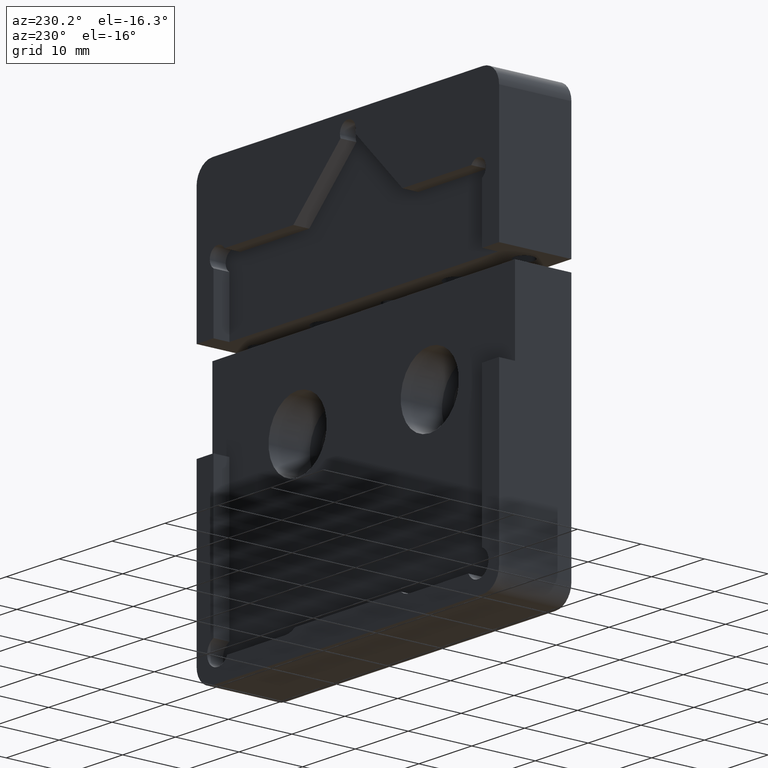
[diagram: clean part render]
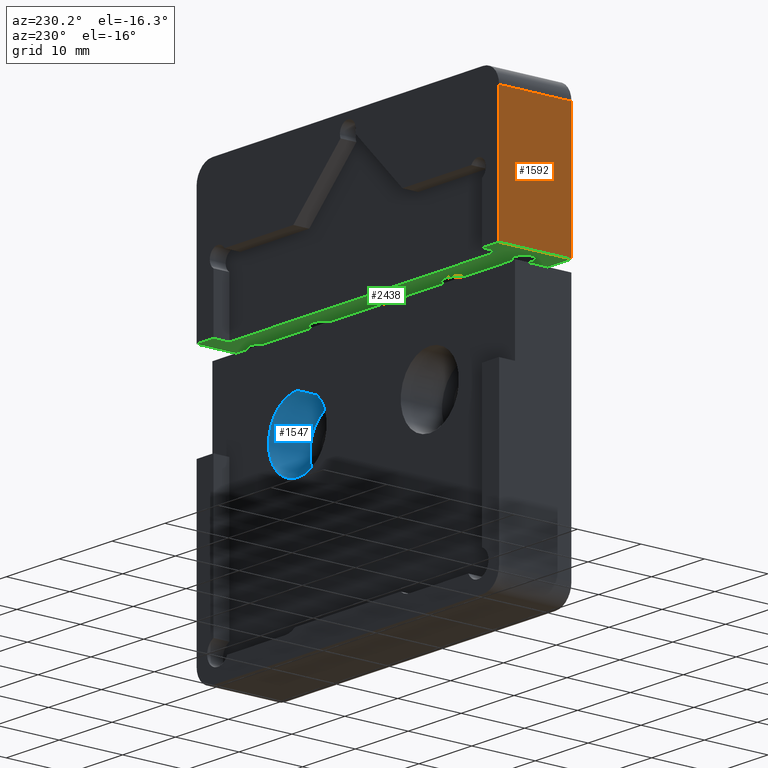
[diagram: same view with three faces highlighted in distinct colors, each labeled with its STEP entity id]
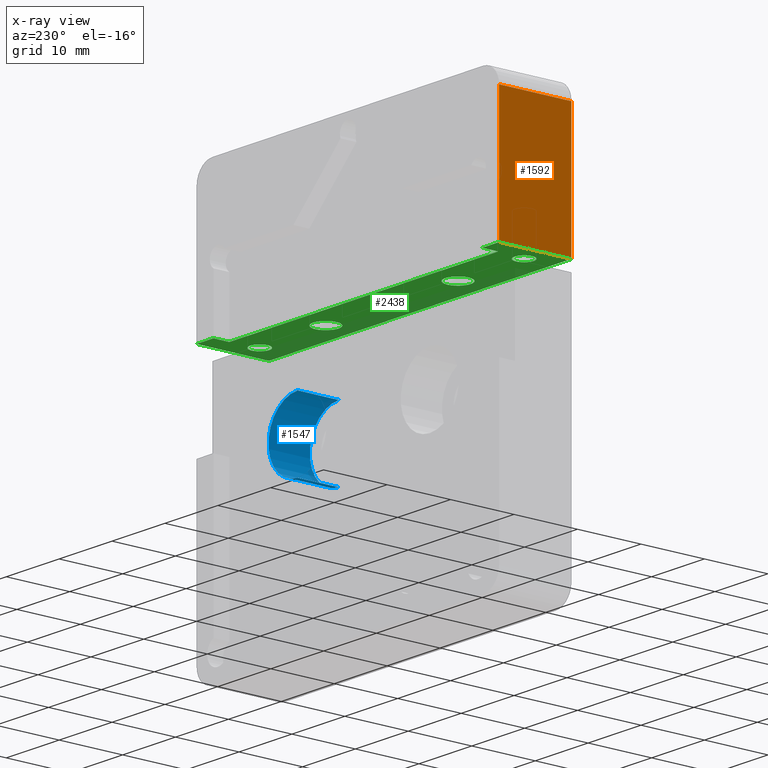
[diagram: x-ray of the same camera — body ghosted, the three highlighted faces saturated]
A machine part, auxiliary view with three faces highlighted in distinct colors.
The next image is the same camera in x-ray (body ghosted, the three faces saturated) — at least one of them is partly hidden behind the body in this view.
Their STEP definitions:

[orange] entity #1592 — the highlighted planar face has unit normal (1, -0, -0).
#113 = FACE_OUTER_BOUND ( 'NONE', #772, .T. ) ;
#249 = VERTEX_POINT ( 'NONE', #2196 ) ;
#307 = AXIS2_PLACEMENT_3D ( 'NONE', #679, #2101, #951 ) ;
#347 = VERTEX_POINT ( 'NONE', #1905 ) ;
#409 = PLANE ( 'NONE',  #307 ) ;
#509 = ORIENTED_EDGE ( 'NONE', *, *, #1775, .T. ) ;
#640 = VERTEX_POINT ( 'NONE', #3427 ) ;
#679 = CARTESIAN_POINT ( 'NONE',  ( 28.60000000000000853, 11.40000000000000036, -11.45000000000000107 ) ) ;
#772 = EDGE_LOOP ( 'NONE', ( #509, #2235, #3213, #1346 ) ) ;
#776 = CARTESIAN_POINT ( 'NONE',  ( 28.60000000000000853, 11.40000000000000036, -11.45000000000000107 ) ) ;
#818 = EDGE_CURVE ( 'NONE', #347, #249, #3266, .T. ) ;
#867 = CARTESIAN_POINT ( 'NONE',  ( 28.60000000000000853, 0.000000000000000000, -8.450000000000002842 ) ) ;
#951 = DIRECTION ( 'NONE',  ( 1.515042337097648137E-16, 0.000000000000000000, 1.000000000000000000 ) ) ;
#1004 = CARTESIAN_POINT ( 'NONE',  ( 28.60000000000001208, 11.40000000000000036, 11.44999999999999751 ) ) ;
#1285 = DIRECTION ( 'NONE',  ( -0.000000000000000000, -1.000000000000000000, -0.000000000000000000 ) ) ;
#1296 = CARTESIAN_POINT ( 'NONE',  ( 28.60000000000000853, 0.000000000000000000, -11.45000000000000107 ) ) ;
#1346 = ORIENTED_EDGE ( 'NONE', *, *, #2035, .T. ) ;
#1592 = ADVANCED_FACE ( 'NONE', ( #113 ), #409, .F. ) ;
#1648 = DIRECTION ( 'NONE',  ( -1.515042337097648137E-16, -0.000000000000000000, -1.000000000000000000 ) ) ;
#1775 = EDGE_CURVE ( 'NONE', #640, #2380, #2117, .T. ) ;
#1903 = DIRECTION ( 'NONE',  ( -0.000000000000000000, 1.000000000000000000, -0.000000000000000000 ) ) ;
#1905 = CARTESIAN_POINT ( 'NONE',  ( 28.60000000000001208, 11.40000000000000036, 11.44999999999999751 ) ) ;
#2035 = EDGE_CURVE ( 'NONE', #347, #640, #2085, .T. ) ;
#2085 = LINE ( 'NONE', #1004, #3292 ) ;
#2101 = DIRECTION ( 'NONE',  ( -1.000000000000000000, 0.000000000000000000, 1.515042337097648137E-16 ) ) ;
#2117 = LINE ( 'NONE', #1296, #2215 ) ;
#2167 = LINE ( 'NONE', #2493, #3540 ) ;
#2196 = CARTESIAN_POINT ( 'NONE',  ( 28.60000000000000853, 11.40000000000000036, -8.450000000000002842 ) ) ;
#2215 = VECTOR ( 'NONE', #2406, 1000.000000000000000 ) ;
#2235 = ORIENTED_EDGE ( 'NONE', *, *, #2746, .T. ) ;
#2380 = VERTEX_POINT ( 'NONE', #867 ) ;
#2406 = DIRECTION ( 'NONE',  ( -1.515042337097648137E-16, -0.000000000000000000, -1.000000000000000000 ) ) ;
#2493 = CARTESIAN_POINT ( 'NONE',  ( 28.60000000000000853, 11.40000000000000036, -8.450000000000002842 ) ) ;
#2746 = EDGE_CURVE ( 'NONE', #2380, #249, #2167, .T. ) ;
#3213 = ORIENTED_EDGE ( 'NONE', *, *, #818, .F. ) ;
#3266 = LINE ( 'NONE', #776, #3461 ) ;
#3292 = VECTOR ( 'NONE', #1285, 1000.000000000000000 ) ;
#3427 = CARTESIAN_POINT ( 'NONE',  ( 28.60000000000001208, 0.000000000000000000, 11.44999999999999751 ) ) ;
#3461 = VECTOR ( 'NONE', #1648, 1000.000000000000000 ) ;
#3540 = VECTOR ( 'NONE', #1903, 1000.000000000000000 ) ;

[blue] entity #1547 — the highlighted cylindrical surface (partial cylindrical patch) has radius 5.5 mm, axis along (0, 1, 0).
#54 = EDGE_CURVE ( 'NONE', #2722, #1504, #3351, .T. ) ;
#115 = DIRECTION ( 'NONE',  ( -0.000000000000000000, 1.000000000000000000, -0.000000000000000000 ) ) ;
#242 = CARTESIAN_POINT ( 'NONE',  ( 12.50000000000000000, 2.400000000000001243, 13.70000000000000284 ) ) ;
#248 = VECTOR ( 'NONE', #2034, 1000.000000000000000 ) ;
#398 = DIRECTION ( 'NONE',  ( -0.000000000000000000, 1.000000000000000000, -0.000000000000000000 ) ) ;
#624 = ORIENTED_EDGE ( 'NONE', *, *, #930, .T. ) ;
#677 = EDGE_LOOP ( 'NONE', ( #3154, #2917, #1611, #624 ) ) ;
#712 = CARTESIAN_POINT ( 'NONE',  ( 12.50000000000000000, 8.900000000000000355, 2.700000000000013056 ) ) ;
#863 = CARTESIAN_POINT ( 'NONE',  ( 12.50000000000000000, 2.400000000000001243, 2.700000000000013056 ) ) ;
#889 = DIRECTION ( 'NONE',  ( -0.000000000000000000, 1.000000000000000000, -0.000000000000000000 ) ) ;
#930 = EDGE_CURVE ( 'NONE', #1504, #3437, #3179, .T. ) ;
#985 = LINE ( 'NONE', #712, #1008 ) ;
#1008 = VECTOR ( 'NONE', #115, 1000.000000000000000 ) ;
#1046 = AXIS2_PLACEMENT_3D ( 'NONE', #3124, #3451, #1247 ) ;
#1083 = EDGE_CURVE ( 'NONE', #2722, #2484, #1577, .T. ) ;
#1247 = DIRECTION ( 'NONE',  ( 0.000000000000000000, 0.000000000000000000, 1.000000000000000000 ) ) ;
#1400 = DIRECTION ( 'NONE',  ( 0.000000000000000000, 0.000000000000000000, 1.000000000000000000 ) ) ;
#1504 = VERTEX_POINT ( 'NONE', #1789 ) ;
#1510 = CARTESIAN_POINT ( 'NONE',  ( 12.50000000000000000, 2.400000000000001243, 8.200000000000008171 ) ) ;
#1547 = ADVANCED_FACE ( 'NONE', ( #3141 ), #3438, .F. ) ;
#1577 = CIRCLE ( 'NONE', #3073, 5.499999999999994671 ) ;
#1611 = ORIENTED_EDGE ( 'NONE', *, *, #54, .T. ) ;
#1756 = CARTESIAN_POINT ( 'NONE',  ( 12.50000000000000000, 8.900000000000000355, 13.70000000000000284 ) ) ;
#1789 = CARTESIAN_POINT ( 'NONE',  ( 12.50000000000000000, 8.900000000000000355, 13.70000000000000284 ) ) ;
#2034 = DIRECTION ( 'NONE',  ( -0.000000000000000000, 1.000000000000000000, -0.000000000000000000 ) ) ;
#2385 = AXIS2_PLACEMENT_3D ( 'NONE', #2512, #889, #1400 ) ;
#2484 = VERTEX_POINT ( 'NONE', #863 ) ;
#2512 = CARTESIAN_POINT ( 'NONE',  ( 12.50000000000000000, 8.900000000000000355, 8.200000000000008171 ) ) ;
#2722 = VERTEX_POINT ( 'NONE', #242 ) ;
#2910 = DIRECTION ( 'NONE',  ( 0.000000000000000000, 0.000000000000000000, 1.000000000000000000 ) ) ;
#2917 = ORIENTED_EDGE ( 'NONE', *, *, #1083, .F. ) ;
#3073 = AXIS2_PLACEMENT_3D ( 'NONE', #1510, #398, #2910 ) ;
#3124 = CARTESIAN_POINT ( 'NONE',  ( 12.50000000000000000, 8.900000000000000355, 8.200000000000008171 ) ) ;
#3128 = CARTESIAN_POINT ( 'NONE',  ( 12.50000000000000000, 8.900000000000000355, 2.700000000000013056 ) ) ;
#3141 = FACE_OUTER_BOUND ( 'NONE', #677, .T. ) ;
#3154 = ORIENTED_EDGE ( 'NONE', *, *, #3401, .F. ) ;
#3179 = CIRCLE ( 'NONE', #2385, 5.499999999999994671 ) ;
#3351 = LINE ( 'NONE', #1756, #248 ) ;
#3401 = EDGE_CURVE ( 'NONE', #2484, #3437, #985, .T. ) ;
#3437 = VERTEX_POINT ( 'NONE', #3128 ) ;
#3438 = CYLINDRICAL_SURFACE ( 'NONE', #1046, 5.499999999999994671 ) ;
#3451 = DIRECTION ( 'NONE',  ( -0.000000000000000000, 1.000000000000000000, -0.000000000000000000 ) ) ;

[green] entity #2438 — the highlighted planar face has unit normal (0, 0, 1).
#19 = DIRECTION ( 'NONE',  ( -1.000000000000000000, 0.000000000000000000, -0.000000000000000000 ) ) ;
#79 = VERTEX_POINT ( 'NONE', #2645 ) ;
#94 = EDGE_CURVE ( 'NONE', #2348, #3272, #450, .T. ) ;
#102 = EDGE_LOOP ( 'NONE', ( #780, #1153, #2957, #263, #2471, #935, #741, #122 ) ) ;
#122 = ORIENTED_EDGE ( 'NONE', *, *, #2035, .F. ) ;
#134 = VECTOR ( 'NONE', #1945, 1000.000000000000000 ) ;
#185 = DIRECTION ( 'NONE',  ( -1.000000000000000000, 0.000000000000000000, 0.000000000000000000 ) ) ;
#202 = EDGE_CURVE ( 'NONE', #1585, #3272, #231, .T. ) ;
#215 = DIRECTION ( 'NONE',  ( 0.000000000000000000, 1.000000000000000000, 0.000000000000000000 ) ) ;
#231 = LINE ( 'NONE', #3310, #134 ) ;
#263 = ORIENTED_EDGE ( 'NONE', *, *, #94, .T. ) ;
#269 = AXIS2_PLACEMENT_3D ( 'NONE', #1481, #2585, #3323 ) ;
#288 = PLANE ( 'NONE',  #1677 ) ;
#347 = VERTEX_POINT ( 'NONE', #1905 ) ;
#354 = DIRECTION ( 'NONE',  ( 1.000000000000000000, 0.000000000000000000, 0.000000000000000000 ) ) ;
#358 = ORIENTED_EDGE ( 'NONE', *, *, #1738, .F. ) ;
#379 = EDGE_LOOP ( 'NONE', ( #2230, #605 ) ) ;
#401 = DIRECTION ( 'NONE',  ( -1.000000000000000000, 0.000000000000000000, 0.000000000000000000 ) ) ;
#422 = CARTESIAN_POINT ( 'NONE',  ( 12.50000000000000000, 4.450000000000005507, 11.44999999999999751 ) ) ;
#450 = LINE ( 'NONE', #1595, #701 ) ;
#460 = DIRECTION ( 'NONE',  ( 1.000000000000000000, 0.000000000000000000, 0.000000000000000000 ) ) ;
#461 = EDGE_CURVE ( 'NONE', #1585, #1114, #3360, .T. ) ;
#492 = AXIS2_PLACEMENT_3D ( 'NONE', #1550, #2360, #401 ) ;
#558 = FACE_OUTER_BOUND ( 'NONE', #102, .T. ) ;
#563 = CARTESIAN_POINT ( 'NONE',  ( -26.50000000000000355, 4.450000000000000178, 11.44999999999999751 ) ) ;
#570 = EDGE_CURVE ( 'NONE', #2559, #3444, #2574, .T. ) ;
#576 = CARTESIAN_POINT ( 'NONE',  ( -28.59999999999999076, 11.40000000000000036, 11.44999999999999751 ) ) ;
#577 = ORIENTED_EDGE ( 'NONE', *, *, #664, .F. ) ;
#603 = LINE ( 'NONE', #3354, #1844 ) ;
#605 = ORIENTED_EDGE ( 'NONE', *, *, #3421, .T. ) ;
#619 = AXIS2_PLACEMENT_3D ( 'NONE', #2522, #1157, #2251 ) ;
#630 = DIRECTION ( 'NONE',  ( 1.000000000000000000, 0.000000000000000000, 0.000000000000000000 ) ) ;
#640 = VERTEX_POINT ( 'NONE', #3427 ) ;
#657 = CARTESIAN_POINT ( 'NONE',  ( 12.50000000000000000, 4.450000000000005507, 11.44999999999999751 ) ) ;
#664 = EDGE_CURVE ( 'NONE', #3444, #2559, #2092, .T. ) ;
#675 = EDGE_CURVE ( 'NONE', #824, #2348, #1586, .T. ) ;
#701 = VECTOR ( 'NONE', #215, 1000.000000000000000 ) ;
#725 = CARTESIAN_POINT ( 'NONE',  ( -25.00000000000000000, 4.450000000000000178, 11.44999999999999751 ) ) ;
#741 = ORIENTED_EDGE ( 'NONE', *, *, #2500, .T. ) ;
#780 = ORIENTED_EDGE ( 'NONE', *, *, #1359, .F. ) ;
#810 = CARTESIAN_POINT ( 'NONE',  ( -23.50000000000000000, 4.450000000000000178, 11.44999999999999751 ) ) ;
#824 = VERTEX_POINT ( 'NONE', #2475 ) ;
#855 = CARTESIAN_POINT ( 'NONE',  ( -25.39999999999999503, 11.40000000000000036, 11.44999999999999751 ) ) ;
#875 = CARTESIAN_POINT ( 'NONE',  ( -28.59999999999999076, 11.40000000000000036, 11.44999999999999751 ) ) ;
#924 = CARTESIAN_POINT ( 'NONE',  ( 0.000000000000000000, 4.450000000000003730, 11.44999999999999751 ) ) ;
#934 = CIRCLE ( 'NONE', #2954, 1.500000000000001332 ) ;
#935 = ORIENTED_EDGE ( 'NONE', *, *, #461, .T. ) ;
#961 = EDGE_LOOP ( 'NONE', ( #1464, #358 ) ) ;
#982 = AXIS2_PLACEMENT_3D ( 'NONE', #422, #2059, #3150 ) ;
#999 = ORIENTED_EDGE ( 'NONE', *, *, #2378, .F. ) ;
#1004 = CARTESIAN_POINT ( 'NONE',  ( 28.60000000000001208, 11.40000000000000036, 11.44999999999999751 ) ) ;
#1017 = DIRECTION ( 'NONE',  ( 0.000000000000000000, 0.000000000000000000, 1.000000000000000000 ) ) ;
#1036 = VECTOR ( 'NONE', #3136, 1000.000000000000000 ) ;
#1114 = VERTEX_POINT ( 'NONE', #2391 ) ;
#1147 = VERTEX_POINT ( 'NONE', #3189 ) ;
#1153 = ORIENTED_EDGE ( 'NONE', *, *, #3331, .T. ) ;
#1157 = DIRECTION ( 'NONE',  ( 0.000000000000000000, 0.000000000000000000, 1.000000000000000000 ) ) ;
#1166 = ORIENTED_EDGE ( 'NONE', *, *, #1809, .F. ) ;
#1199 = LINE ( 'NONE', #1753, #1583 ) ;
#1253 = CARTESIAN_POINT ( 'NONE',  ( -14.50000000000000000, 4.450000000000001954, 11.44999999999999751 ) ) ;
#1256 = AXIS2_PLACEMENT_3D ( 'NONE', #2869, #1429, #2046 ) ;
#1268 = EDGE_CURVE ( 'NONE', #1816, #1147, #2621, .T. ) ;
#1285 = DIRECTION ( 'NONE',  ( -0.000000000000000000, -1.000000000000000000, -0.000000000000000000 ) ) ;
#1359 = EDGE_CURVE ( 'NONE', #2626, #347, #1199, .T. ) ;
#1372 = CIRCLE ( 'NONE', #619, 1.500000000000001332 ) ;
#1429 = DIRECTION ( 'NONE',  ( 0.000000000000000000, 0.000000000000000000, 1.000000000000000000 ) ) ;
#1434 = VERTEX_POINT ( 'NONE', #563 ) ;
#1464 = ORIENTED_EDGE ( 'NONE', *, *, #2553, .F. ) ;
#1465 = VECTOR ( 'NONE', #185, 1000.000000000000000 ) ;
#1481 = CARTESIAN_POINT ( 'NONE',  ( 25.00000000000000000, 4.450000000000006395, 11.44999999999999751 ) ) ;
#1487 = EDGE_LOOP ( 'NONE', ( #1166, #999 ) ) ;
#1550 = CARTESIAN_POINT ( 'NONE',  ( 25.00000000000000000, 4.450000000000006395, 11.44999999999999751 ) ) ;
#1567 = CARTESIAN_POINT ( 'NONE',  ( -28.59999999999999076, 8.900000000000000355, 11.44999999999999751 ) ) ;
#1583 = VECTOR ( 'NONE', #630, 1000.000000000000000 ) ;
#1585 = VERTEX_POINT ( 'NONE', #1774 ) ;
#1586 = LINE ( 'NONE', #1567, #1465 ) ;
#1595 = CARTESIAN_POINT ( 'NONE',  ( -25.39999999999999503, 11.40000000000000036, 11.44999999999999751 ) ) ;
#1598 = DIRECTION ( 'NONE',  ( -1.000000000000000000, 0.000000000000000000, 0.000000000000000000 ) ) ;
#1632 = CARTESIAN_POINT ( 'NONE',  ( -1.449999999999996847, 4.450000000000003730, 11.44999999999999751 ) ) ;
#1633 = FACE_BOUND ( 'NONE', #961, .T. ) ;
#1654 = EDGE_LOOP ( 'NONE', ( #577, #1724 ) ) ;
#1677 = AXIS2_PLACEMENT_3D ( 'NONE', #576, #2498, #19 ) ;
#1724 = ORIENTED_EDGE ( 'NONE', *, *, #570, .F. ) ;
#1738 = EDGE_CURVE ( 'NONE', #2050, #3466, #3457, .T. ) ;
#1753 = CARTESIAN_POINT ( 'NONE',  ( -28.59999999999999076, 11.40000000000000036, 11.44999999999999751 ) ) ;
#1768 = CARTESIAN_POINT ( 'NONE',  ( 10.50000000000000000, 4.450000000000005507, 11.44999999999999751 ) ) ;
#1774 = CARTESIAN_POINT ( 'NONE',  ( -28.59999999999999076, 11.40000000000000036, 11.44999999999999751 ) ) ;
#1777 = CARTESIAN_POINT ( 'NONE',  ( 14.50000000000000000, 4.450000000000005507, 11.44999999999999751 ) ) ;
#1782 = DIRECTION ( 'NONE',  ( 0.000000000000000000, 0.000000000000000000, 1.000000000000000000 ) ) ;
#1792 = CARTESIAN_POINT ( 'NONE',  ( -10.50000000000000000, 4.450000000000001954, 11.44999999999999751 ) ) ;
#1809 = EDGE_CURVE ( 'NONE', #2253, #1434, #934, .T. ) ;
#1816 = VERTEX_POINT ( 'NONE', #1632 ) ;
#1832 = CARTESIAN_POINT ( 'NONE',  ( 25.39999999999999858, 11.40000000000000036, 11.44999999999999751 ) ) ;
#1844 = VECTOR ( 'NONE', #2510, 1000.000000000000000 ) ;
#1905 = CARTESIAN_POINT ( 'NONE',  ( 28.60000000000001208, 11.40000000000000036, 11.44999999999999751 ) ) ;
#1929 = AXIS2_PLACEMENT_3D ( 'NONE', #2940, #1017, #3273 ) ;
#1943 = FACE_BOUND ( 'NONE', #379, .T. ) ;
#1945 = DIRECTION ( 'NONE',  ( 1.000000000000000000, 0.000000000000000000, 0.000000000000000000 ) ) ;
#1959 = CIRCLE ( 'NONE', #1256, 2.000000000000000000 ) ;
#2035 = EDGE_CURVE ( 'NONE', #347, #640, #2085, .T. ) ;
#2036 = DIRECTION ( 'NONE',  ( -1.000000000000000000, 0.000000000000000000, 0.000000000000000000 ) ) ;
#2046 = DIRECTION ( 'NONE',  ( 1.000000000000000000, 0.000000000000000000, 0.000000000000000000 ) ) ;
#2050 = VERTEX_POINT ( 'NONE', #1253 ) ;
#2059 = DIRECTION ( 'NONE',  ( 0.000000000000000000, 0.000000000000000000, 1.000000000000000000 ) ) ;
#2085 = LINE ( 'NONE', #1004, #3292 ) ;
#2092 = CIRCLE ( 'NONE', #982, 2.000000000000000000 ) ;
#2156 = CARTESIAN_POINT ( 'NONE',  ( 0.000000000000000000, 4.450000000000003730, 11.44999999999999751 ) ) ;
#2229 = FACE_BOUND ( 'NONE', #1654, .T. ) ;
#2230 = ORIENTED_EDGE ( 'NONE', *, *, #1268, .T. ) ;
#2251 = DIRECTION ( 'NONE',  ( 1.000000000000000000, 0.000000000000000000, 0.000000000000000000 ) ) ;
#2253 = VERTEX_POINT ( 'NONE', #810 ) ;
#2256 = ORIENTED_EDGE ( 'NONE', *, *, #2996, .F. ) ;
#2280 = CARTESIAN_POINT ( 'NONE',  ( -28.59999999999999076, 0.000000000000000000, 11.44999999999999751 ) ) ;
#2298 = CIRCLE ( 'NONE', #3483, 1.449999999999996847 ) ;
#2348 = VERTEX_POINT ( 'NONE', #3332 ) ;
#2350 = CIRCLE ( 'NONE', #492, 1.500000000000001332 ) ;
#2360 = DIRECTION ( 'NONE',  ( 0.000000000000000000, 0.000000000000000000, 1.000000000000000000 ) ) ;
#2378 = EDGE_CURVE ( 'NONE', #1434, #2253, #1372, .T. ) ;
#2391 = CARTESIAN_POINT ( 'NONE',  ( -28.59999999999999076, 0.000000000000000000, 11.44999999999999751 ) ) ;
#2434 = CARTESIAN_POINT ( 'NONE',  ( 26.50000000000000355, 4.450000000000006395, 11.44999999999999751 ) ) ;
#2438 = ADVANCED_FACE ( 'NONE', ( #1943, #2994, #3030, #2229, #1633, #558 ), #288, .F. ) ;
#2471 = ORIENTED_EDGE ( 'NONE', *, *, #202, .F. ) ;
#2475 = CARTESIAN_POINT ( 'NONE',  ( 25.39999999999999858, 8.900000000000000355, 11.44999999999999751 ) ) ;
#2498 = DIRECTION ( 'NONE',  ( 0.000000000000000000, 0.000000000000000000, -1.000000000000000000 ) ) ;
#2500 = EDGE_CURVE ( 'NONE', #1114, #640, #3120, .T. ) ;
#2510 = DIRECTION ( 'NONE',  ( 0.000000000000000000, -1.000000000000000000, 0.000000000000000000 ) ) ;
#2522 = CARTESIAN_POINT ( 'NONE',  ( -25.00000000000000000, 4.450000000000000178, 11.44999999999999751 ) ) ;
#2553 = EDGE_CURVE ( 'NONE', #3466, #2050, #1959, .T. ) ;
#2559 = VERTEX_POINT ( 'NONE', #1768 ) ;
#2574 = CIRCLE ( 'NONE', #3513, 2.000000000000000000 ) ;
#2585 = DIRECTION ( 'NONE',  ( 0.000000000000000000, 0.000000000000000000, 1.000000000000000000 ) ) ;
#2602 = DIRECTION ( 'NONE',  ( 0.000000000000000000, 0.000000000000000000, -1.000000000000000000 ) ) ;
#2621 = CIRCLE ( 'NONE', #3181, 1.449999999999996847 ) ;
#2626 = VERTEX_POINT ( 'NONE', #1832 ) ;
#2645 = CARTESIAN_POINT ( 'NONE',  ( 23.50000000000000000, 4.450000000000006395, 11.44999999999999751 ) ) ;
#2672 = DIRECTION ( 'NONE',  ( 0.000000000000000000, 0.000000000000000000, 1.000000000000000000 ) ) ;
#2742 = VERTEX_POINT ( 'NONE', #2434 ) ;
#2866 = CIRCLE ( 'NONE', #269, 1.500000000000001332 ) ;
#2867 = DIRECTION ( 'NONE',  ( -1.000000000000000000, 0.000000000000000000, 0.000000000000000000 ) ) ;
#2869 = CARTESIAN_POINT ( 'NONE',  ( -12.50000000000000000, 4.450000000000001954, 11.44999999999999751 ) ) ;
#2940 = CARTESIAN_POINT ( 'NONE',  ( -12.50000000000000000, 4.450000000000001954, 11.44999999999999751 ) ) ;
#2947 = EDGE_CURVE ( 'NONE', #2742, #79, #2866, .T. ) ;
#2954 = AXIS2_PLACEMENT_3D ( 'NONE', #725, #2672, #460 ) ;
#2957 = ORIENTED_EDGE ( 'NONE', *, *, #675, .T. ) ;
#2992 = ORIENTED_EDGE ( 'NONE', *, *, #2947, .F. ) ;
#2994 = FACE_BOUND ( 'NONE', #3054, .T. ) ;
#2996 = EDGE_CURVE ( 'NONE', #79, #2742, #2350, .T. ) ;
#3030 = FACE_BOUND ( 'NONE', #1487, .T. ) ;
#3054 = EDGE_LOOP ( 'NONE', ( #2992, #2256 ) ) ;
#3120 = LINE ( 'NONE', #2280, #3549 ) ;
#3136 = DIRECTION ( 'NONE',  ( -0.000000000000000000, -1.000000000000000000, -0.000000000000000000 ) ) ;
#3150 = DIRECTION ( 'NONE',  ( -1.000000000000000000, 0.000000000000000000, 0.000000000000000000 ) ) ;
#3181 = AXIS2_PLACEMENT_3D ( 'NONE', #2156, #3506, #1598 ) ;
#3189 = CARTESIAN_POINT ( 'NONE',  ( 1.449999999999996847, 4.450000000000003730, 11.44999999999999751 ) ) ;
#3272 = VERTEX_POINT ( 'NONE', #855 ) ;
#3273 = DIRECTION ( 'NONE',  ( 1.000000000000000000, 0.000000000000000000, 0.000000000000000000 ) ) ;
#3292 = VECTOR ( 'NONE', #1285, 1000.000000000000000 ) ;
#3310 = CARTESIAN_POINT ( 'NONE',  ( -28.59999999999999076, 11.40000000000000036, 11.44999999999999751 ) ) ;
#3323 = DIRECTION ( 'NONE',  ( -1.000000000000000000, 0.000000000000000000, 0.000000000000000000 ) ) ;
#3331 = EDGE_CURVE ( 'NONE', #2626, #824, #603, .T. ) ;
#3332 = CARTESIAN_POINT ( 'NONE',  ( -25.39999999999999503, 8.900000000000000355, 11.44999999999999751 ) ) ;
#3354 = CARTESIAN_POINT ( 'NONE',  ( 25.40000000000000213, 11.40000000000000036, 11.44999999999999751 ) ) ;
#3360 = LINE ( 'NONE', #875, #1036 ) ;
#3421 = EDGE_CURVE ( 'NONE', #1147, #1816, #2298, .T. ) ;
#3427 = CARTESIAN_POINT ( 'NONE',  ( 28.60000000000001208, 0.000000000000000000, 11.44999999999999751 ) ) ;
#3444 = VERTEX_POINT ( 'NONE', #1777 ) ;
#3457 = CIRCLE ( 'NONE', #1929, 2.000000000000000000 ) ;
#3466 = VERTEX_POINT ( 'NONE', #1792 ) ;
#3483 = AXIS2_PLACEMENT_3D ( 'NONE', #924, #2602, #2036 ) ;
#3506 = DIRECTION ( 'NONE',  ( 0.000000000000000000, 0.000000000000000000, -1.000000000000000000 ) ) ;
#3513 = AXIS2_PLACEMENT_3D ( 'NONE', #657, #1782, #2867 ) ;
#3549 = VECTOR ( 'NONE', #354, 1000.000000000000000 ) ;